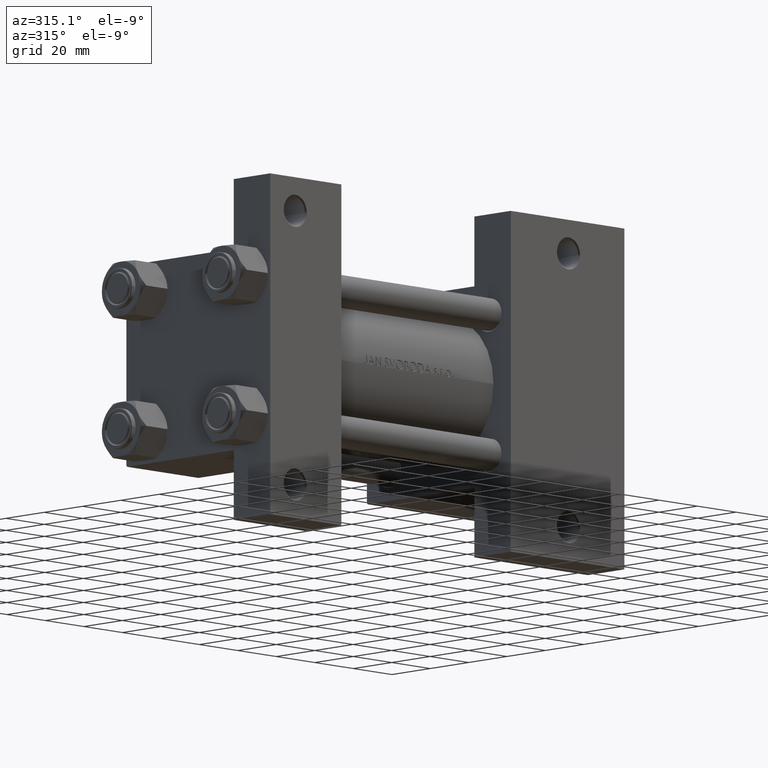
[diagram: clean part render]
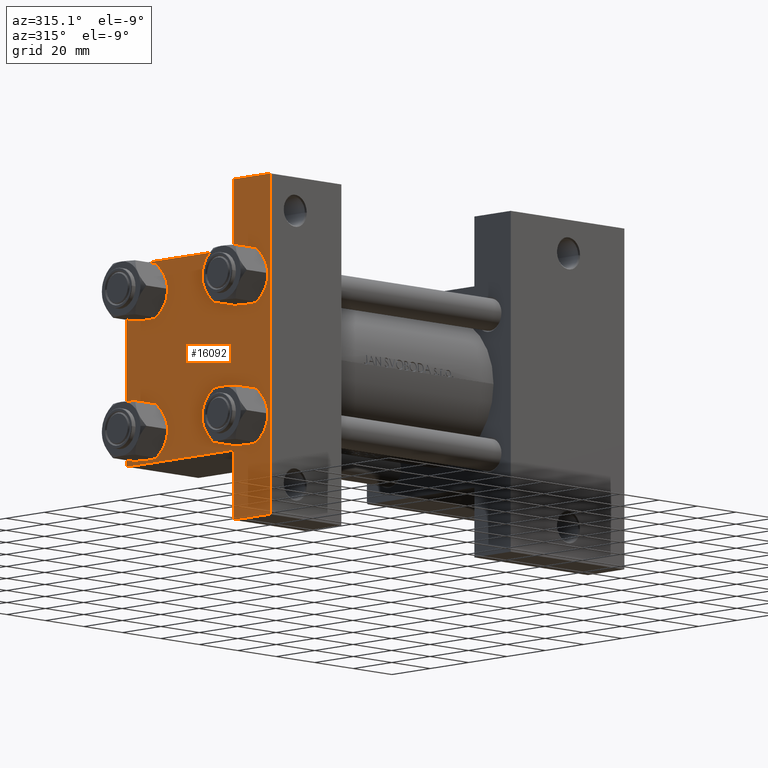
[diagram: same view with one face highlighted and labeled with its STEP entity id]
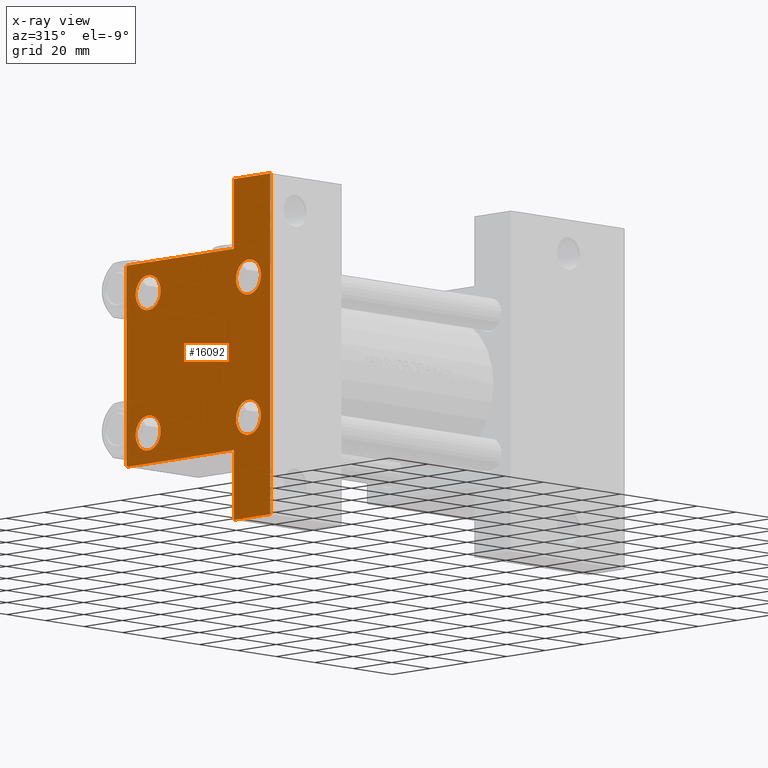
[diagram: x-ray of the same camera — body ghosted, the highlighted face saturated]
A machine part, auxiliary view. The second image highlights one B-rep face of the part: STEP entity #16092.
The next image is the same camera in x-ray: the body ghosted, the highlighted face saturated — about 0% of this face is hidden behind the body in this view.
In plain terms, the highlighted planar face has unit normal (-1, 0, -0).
Its self-contained STEP definition (entity closure, byte-faithful):
#199 = CARTESIAN_POINT ( 'NONE',  ( -0.000000000000000000, -37.25000000000000000, 37.25000000000000000 ) ) ;
#314 = CARTESIAN_POINT ( 'NONE',  ( 0.000000000000000000, 36.99999999999999289, 37.50000000000000000 ) ) ;
#525 = DIRECTION ( 'NONE',  ( 1.000000000000000000, -0.000000000000000000, 0.000000000000000000 ) ) ;
#709 = LINE ( 'NONE', #11532, #41106 ) ;
#712 = ORIENTED_EDGE ( 'NONE', *, *, #5954, .T. ) ;
#1195 = DIRECTION ( 'NONE',  ( 1.000000000000000000, -0.000000000000000000, 0.000000000000000000 ) ) ;
#1413 = CARTESIAN_POINT ( 'NONE',  ( 0.000000000000000000, -26.14999999999999147, -26.15000000000000924 ) ) ;
#1538 = CARTESIAN_POINT ( 'NONE',  ( 0.000000000000000000, 37.24999999999999289, 37.24999999999999289 ) ) ;
#1938 = EDGE_CURVE ( 'NONE', #46077, #17684, #35574, .T. ) ;
#2026 = CARTESIAN_POINT ( 'NONE',  ( 3.977209754999747208E-16, -63.50000000000000000, -37.49999999999999289 ) ) ;
#2590 = ORIENTED_EDGE ( 'NONE', *, *, #13145, .F. ) ;
#2647 = LINE ( 'NONE', #40143, #42889 ) ;
#2716 = CARTESIAN_POINT ( 'NONE',  ( 0.000000000000000000, -26.14999999999999147, -32.65000000000002700 ) ) ;
#2950 = EDGE_LOOP ( 'NONE', ( #30662, #40147 ) ) ;
#3352 = CARTESIAN_POINT ( 'NONE',  ( 0.000000000000000000, 0.000000000000000000, 0.000000000000000000 ) ) ;
#3642 = CIRCLE ( 'NONE', #15935, 6.500000000000023093 ) ;
#3813 = CARTESIAN_POINT ( 'NONE',  ( 3.977209754999747208E-16, -63.50000000000000000, -18.50000000000000355 ) ) ;
#4243 = EDGE_CURVE ( 'NONE', #21654, #16653, #709, .T. ) ;
#5016 = DIRECTION ( 'NONE',  ( 0.000000000000000000, 0.000000000000000000, 1.000000000000000000 ) ) ;
#5132 = CARTESIAN_POINT ( 'NONE',  ( 1.595073532467135441E-14, 63.50000000000000000, -18.50000000000000355 ) ) ;
#5324 = FACE_BOUND ( 'NONE', #40095, .T. ) ;
#5954 = EDGE_CURVE ( 'NONE', #17262, #26194, #15029, .T. ) ;
#5999 = CARTESIAN_POINT ( 'NONE',  ( 0.000000000000000000, 37.49999999999999289, -37.50000000000000000 ) ) ;
#6019 = VERTEX_POINT ( 'NONE', #25299 ) ;
#6156 = EDGE_LOOP ( 'NONE', ( #40624, #44159 ) ) ;
#6719 = DIRECTION ( 'NONE',  ( -1.000000000000000000, 0.000000000000000000, -0.000000000000000000 ) ) ;
#6913 = DIRECTION ( 'NONE',  ( 0.000000000000000000, 0.000000000000000000, 1.000000000000000000 ) ) ;
#8105 = VERTEX_POINT ( 'NONE', #2716 ) ;
#8324 = DIRECTION ( 'NONE',  ( 1.000000000000000000, -0.000000000000000000, 0.000000000000000000 ) ) ;
#8502 = CARTESIAN_POINT ( 'NONE',  ( 0.000000000000000000, 26.14999999999999858, -19.64999999999998792 ) ) ;
#8785 = CARTESIAN_POINT ( 'NONE',  ( 1.595073532467135441E-14, 63.50000000000000000, -37.50000000000002132 ) ) ;
#8938 = CARTESIAN_POINT ( 'NONE',  ( 0.000000000000000000, 37.49999999999999289, 37.00000000000000000 ) ) ;
#8943 = ORIENTED_EDGE ( 'NONE', *, *, #37833, .T. ) ;
#8979 = DIRECTION ( 'NONE',  ( 0.000000000000000000, 0.7071067811865474617, -0.7071067811865474617 ) ) ;
#9156 = FACE_BOUND ( 'NONE', #2950, .T. ) ;
#9394 = EDGE_CURVE ( 'NONE', #8105, #27287, #27357, .T. ) ;
#9820 = CARTESIAN_POINT ( 'NONE',  ( 0.000000000000000000, -26.14999999999999147, -26.15000000000000924 ) ) ;
#10374 = DIRECTION ( 'NONE',  ( 1.000000000000000000, -0.000000000000000000, 0.000000000000000000 ) ) ;
#10606 = AXIS2_PLACEMENT_3D ( 'NONE', #45528, #35398, #38073 ) ;
#11254 = VECTOR ( 'NONE', #26173, 1000.000000000000000 ) ;
#11489 = CARTESIAN_POINT ( 'NONE',  ( 0.000000000000000000, 37.49999999999999289, 37.50000000000000000 ) ) ;
#11532 = CARTESIAN_POINT ( 'NONE',  ( 3.977209754999744250E-16, -63.49999999999998579, -18.50000000000000355 ) ) ;
#11601 = VERTEX_POINT ( 'NONE', #2026 ) ;
#11856 = CARTESIAN_POINT ( 'NONE',  ( 0.000000000000000000, 26.14999999999999858, -32.65000000000001990 ) ) ;
#12144 = EDGE_CURVE ( 'NONE', #16653, #11601, #40405, .T. ) ;
#12961 = DIRECTION ( 'NONE',  ( 0.000000000000000000, 0.000000000000000000, 1.000000000000000000 ) ) ;
#13145 = EDGE_CURVE ( 'NONE', #38534, #6019, #29311, .T. ) ;
#13340 = AXIS2_PLACEMENT_3D ( 'NONE', #15198, #525, #22195 ) ;
#14193 = CARTESIAN_POINT ( 'NONE',  ( 3.977209754999747208E-16, -63.49999999999998579, 26.72167621838007889 ) ) ;
#14518 = ORIENTED_EDGE ( 'NONE', *, *, #38944, .T. ) ;
#14899 = EDGE_CURVE ( 'NONE', #26194, #17262, #28269, .T. ) ;
#15013 = CARTESIAN_POINT ( 'NONE',  ( 0.000000000000000000, -37.50000000000000711, 36.99999999999999289 ) ) ;
#15029 = CIRCLE ( 'NONE', #16565, 6.500000000000023093 ) ;
#15198 = CARTESIAN_POINT ( 'NONE',  ( 0.000000000000000000, 26.14999999999999858, -26.15000000000000213 ) ) ;
#15710 = VERTEX_POINT ( 'NONE', #15013 ) ;
#15734 = AXIS2_PLACEMENT_3D ( 'NONE', #34134, #1195, #15868 ) ;
#15868 = DIRECTION ( 'NONE',  ( 0.000000000000000000, 0.000000000000000000, 1.000000000000000000 ) ) ;
#15890 = EDGE_CURVE ( 'NONE', #46077, #27375, #34477, .T. ) ;
#15935 = AXIS2_PLACEMENT_3D ( 'NONE', #40091, #29044, #6913 ) ;
#16092 = ADVANCED_FACE ( 'NONE', ( #5324, #9156, #20001, #34658, #16372 ), #20231, .T. ) ;
#16372 = FACE_OUTER_BOUND ( 'NONE', #21469, .T. ) ;
#16565 = AXIS2_PLACEMENT_3D ( 'NONE', #42601, #10374, #42838 ) ;
#16629 = VECTOR ( 'NONE', #22157, 1000.000000000000000 ) ;
#16653 = VERTEX_POINT ( 'NONE', #3813 ) ;
#17262 = VERTEX_POINT ( 'NONE', #19487 ) ;
#17569 = VECTOR ( 'NONE', #23592, 1000.000000000000000 ) ;
#17684 = VERTEX_POINT ( 'NONE', #18247 ) ;
#17692 = EDGE_CURVE ( 'NONE', #15710, #17684, #25947, .T. ) ;
#18247 = CARTESIAN_POINT ( 'NONE',  ( 0.000000000000000000, -37.00000000000000711, 37.49999999999999289 ) ) ;
#18994 = DIRECTION ( 'NONE',  ( 4.278042683914906889E-17, -1.000000000000000000, 0.000000000000000000 ) ) ;
#19180 = VERTEX_POINT ( 'NONE', #8502 ) ;
#19487 = CARTESIAN_POINT ( 'NONE',  ( 0.000000000000000000, 26.14999999999999858, 19.64999999999998437 ) ) ;
#19998 = CARTESIAN_POINT ( 'NONE',  ( 0.000000000000000000, 26.14999999999999858, 32.65000000000002700 ) ) ;
#20001 = FACE_BOUND ( 'NONE', #6156, .T. ) ;
#20215 = ORIENTED_EDGE ( 'NONE', *, *, #4243, .F. ) ;
#20231 = PLANE ( 'NONE',  #46734 ) ;
#21034 = ORIENTED_EDGE ( 'NONE', *, *, #41102, .F. ) ;
#21469 = EDGE_LOOP ( 'NONE', ( #21034, #32872, #45898, #21595, #27805, #2590, #35302, #8943, #47369, #20215 ) ) ;
#21595 = ORIENTED_EDGE ( 'NONE', *, *, #15890, .T. ) ;
#21654 = VERTEX_POINT ( 'NONE', #27040 ) ;
#22109 = DIRECTION ( 'NONE',  ( -0.000000000000000000, 0.7071067811865474617, 0.7071067811865474617 ) ) ;
#22157 = DIRECTION ( 'NONE',  ( 0.000000000000000000, -1.734723475976806848E-16, -1.000000000000000000 ) ) ;
#22195 = DIRECTION ( 'NONE',  ( 0.000000000000000000, 0.000000000000000000, 1.000000000000000000 ) ) ;
#23592 = DIRECTION ( 'NONE',  ( 0.000000000000000000, -1.000000000000000000, -9.251858538542972814E-17 ) ) ;
#23608 = VECTOR ( 'NONE', #47185, 1000.000000000000000 ) ;
#23916 = EDGE_CURVE ( 'NONE', #19180, #25091, #47205, .T. ) ;
#24543 = DIRECTION ( 'NONE',  ( 0.000000000000000000, 9.251858538542971581E-17, -1.000000000000000000 ) ) ;
#25077 = LINE ( 'NONE', #32522, #23608 ) ;
#25091 = VERTEX_POINT ( 'NONE', #11856 ) ;
#25299 = CARTESIAN_POINT ( 'NONE',  ( 0.000000000000000000, 37.49999999999999289, -18.49999999999999645 ) ) ;
#25947 = LINE ( 'NONE', #199, #43708 ) ;
#26173 = DIRECTION ( 'NONE',  ( 0.000000000000000000, 0.000000000000000000, -1.000000000000000000 ) ) ;
#26194 = VERTEX_POINT ( 'NONE', #19998 ) ;
#26843 = EDGE_CURVE ( 'NONE', #25091, #19180, #47160, .T. ) ;
#27040 = CARTESIAN_POINT ( 'NONE',  ( -7.145701223179004046E-16, -37.50000000000000711, -18.50000000000000355 ) ) ;
#27287 = VERTEX_POINT ( 'NONE', #45501 ) ;
#27357 = CIRCLE ( 'NONE', #46627, 6.500000000000015987 ) ;
#27375 = VERTEX_POINT ( 'NONE', #8938 ) ;
#27805 = ORIENTED_EDGE ( 'NONE', *, *, #31807, .T. ) ;
#28269 = CIRCLE ( 'NONE', #10606, 6.500000000000023093 ) ;
#29044 = DIRECTION ( 'NONE',  ( 1.000000000000000000, -0.000000000000000000, 0.000000000000000000 ) ) ;
#29311 = LINE ( 'NONE', #36758, #36648 ) ;
#29778 = LINE ( 'NONE', #11489, #11254 ) ;
#30458 = CARTESIAN_POINT ( 'NONE',  ( 0.000000000000000000, -26.14999999999999147, 26.15000000000000924 ) ) ;
#30532 = VERTEX_POINT ( 'NONE', #47563 ) ;
#30585 = VECTOR ( 'NONE', #8979, 1000.000000000000114 ) ;
#30662 = ORIENTED_EDGE ( 'NONE', *, *, #43710, .T. ) ;
#30991 = ORIENTED_EDGE ( 'NONE', *, *, #14899, .T. ) ;
#31807 = EDGE_CURVE ( 'NONE', #27375, #6019, #29778, .T. ) ;
#32522 = CARTESIAN_POINT ( 'NONE',  ( 1.595073532467135441E-14, 63.50000000000001421, 26.72167621838005047 ) ) ;
#32872 = ORIENTED_EDGE ( 'NONE', *, *, #17692, .T. ) ;
#32962 = AXIS2_PLACEMENT_3D ( 'NONE', #30458, #8324, #45122 ) ;
#33950 = EDGE_CURVE ( 'NONE', #38534, #47503, #25077, .T. ) ;
#34134 = CARTESIAN_POINT ( 'NONE',  ( 0.000000000000000000, 26.14999999999999858, -26.15000000000000213 ) ) ;
#34477 = LINE ( 'NONE', #1538, #30585 ) ;
#34492 = EDGE_CURVE ( 'NONE', #44107, #30532, #3642, .T. ) ;
#34517 = CIRCLE ( 'NONE', #32962, 6.500000000000023093 ) ;
#34658 = FACE_BOUND ( 'NONE', #35081, .T. ) ;
#35081 = EDGE_LOOP ( 'NONE', ( #30991, #712 ) ) ;
#35302 = ORIENTED_EDGE ( 'NONE', *, *, #33950, .T. ) ;
#35343 = DIRECTION ( 'NONE',  ( 0.000000000000000000, -1.000000000000000000, -9.251858538542971581E-17 ) ) ;
#35398 = DIRECTION ( 'NONE',  ( 1.000000000000000000, -0.000000000000000000, 0.000000000000000000 ) ) ;
#35574 = LINE ( 'NONE', #42326, #44095 ) ;
#36290 = DIRECTION ( 'NONE',  ( -0.000000000000000000, 0.000000000000000000, 1.000000000000000000 ) ) ;
#36648 = VECTOR ( 'NONE', #43477, 1000.000000000000000 ) ;
#36758 = CARTESIAN_POINT ( 'NONE',  ( 1.595073532467135757E-14, 63.50000000000001421, -18.50000000000000355 ) ) ;
#37833 = EDGE_CURVE ( 'NONE', #47503, #11601, #38702, .T. ) ;
#38073 = DIRECTION ( 'NONE',  ( 0.000000000000000000, 0.000000000000000000, 1.000000000000000000 ) ) ;
#38203 = DIRECTION ( 'NONE',  ( 1.000000000000000000, -0.000000000000000000, 0.000000000000000000 ) ) ;
#38534 = VERTEX_POINT ( 'NONE', #5132 ) ;
#38702 = LINE ( 'NONE', #5999, #17569 ) ;
#38944 = EDGE_CURVE ( 'NONE', #30532, #44107, #34517, .T. ) ;
#39121 = AXIS2_PLACEMENT_3D ( 'NONE', #9820, #39389, #12961 ) ;
#39389 = DIRECTION ( 'NONE',  ( 1.000000000000000000, -0.000000000000000000, 0.000000000000000000 ) ) ;
#40091 = CARTESIAN_POINT ( 'NONE',  ( 0.000000000000000000, -26.14999999999999147, 26.15000000000000924 ) ) ;
#40095 = EDGE_LOOP ( 'NONE', ( #41148, #14518 ) ) ;
#40143 = CARTESIAN_POINT ( 'NONE',  ( 0.000000000000000000, -37.50000000000000711, 37.49999999999999289 ) ) ;
#40147 = ORIENTED_EDGE ( 'NONE', *, *, #9394, .T. ) ;
#40405 = LINE ( 'NONE', #14193, #16629 ) ;
#40624 = ORIENTED_EDGE ( 'NONE', *, *, #23916, .T. ) ;
#41102 = EDGE_CURVE ( 'NONE', #15710, #21654, #2647, .T. ) ;
#41106 = VECTOR ( 'NONE', #18994, 1000.000000000000000 ) ;
#41148 = ORIENTED_EDGE ( 'NONE', *, *, #34492, .T. ) ;
#41698 = CARTESIAN_POINT ( 'NONE',  ( 0.000000000000000000, -26.14999999999999147, 32.65000000000003411 ) ) ;
#42326 = CARTESIAN_POINT ( 'NONE',  ( 0.000000000000000000, 37.49999999999999289, 37.50000000000000000 ) ) ;
#42601 = CARTESIAN_POINT ( 'NONE',  ( 0.000000000000000000, 26.14999999999999858, 26.15000000000000213 ) ) ;
#42838 = DIRECTION ( 'NONE',  ( 0.000000000000000000, 0.000000000000000000, 1.000000000000000000 ) ) ;
#42889 = VECTOR ( 'NONE', #24543, 1000.000000000000000 ) ;
#43477 = DIRECTION ( 'NONE',  ( -2.877097866686192789E-16, -1.000000000000000000, 0.000000000000000000 ) ) ;
#43708 = VECTOR ( 'NONE', #22109, 1000.000000000000114 ) ;
#43710 = EDGE_CURVE ( 'NONE', #27287, #8105, #47580, .T. ) ;
#44095 = VECTOR ( 'NONE', #35343, 1000.000000000000000 ) ;
#44107 = VERTEX_POINT ( 'NONE', #41698 ) ;
#44159 = ORIENTED_EDGE ( 'NONE', *, *, #26843, .T. ) ;
#45122 = DIRECTION ( 'NONE',  ( 0.000000000000000000, 0.000000000000000000, 1.000000000000000000 ) ) ;
#45501 = CARTESIAN_POINT ( 'NONE',  ( 0.000000000000000000, -26.14999999999999147, -19.64999999999999503 ) ) ;
#45528 = CARTESIAN_POINT ( 'NONE',  ( 0.000000000000000000, 26.14999999999999858, 26.15000000000000213 ) ) ;
#45898 = ORIENTED_EDGE ( 'NONE', *, *, #1938, .F. ) ;
#46077 = VERTEX_POINT ( 'NONE', #314 ) ;
#46627 = AXIS2_PLACEMENT_3D ( 'NONE', #1413, #38203, #5016 ) ;
#46734 = AXIS2_PLACEMENT_3D ( 'NONE', #3352, #6719, #36290 ) ;
#47160 = CIRCLE ( 'NONE', #13340, 6.500000000000015987 ) ;
#47185 = DIRECTION ( 'NONE',  ( 0.000000000000000000, -1.734723475976806848E-16, -1.000000000000000000 ) ) ;
#47205 = CIRCLE ( 'NONE', #15734, 6.500000000000015987 ) ;
#47369 = ORIENTED_EDGE ( 'NONE', *, *, #12144, .F. ) ;
#47503 = VERTEX_POINT ( 'NONE', #8785 ) ;
#47563 = CARTESIAN_POINT ( 'NONE',  ( 0.000000000000000000, -26.14999999999999147, 19.64999999999999147 ) ) ;
#47580 = CIRCLE ( 'NONE', #39121, 6.500000000000015987 ) ;